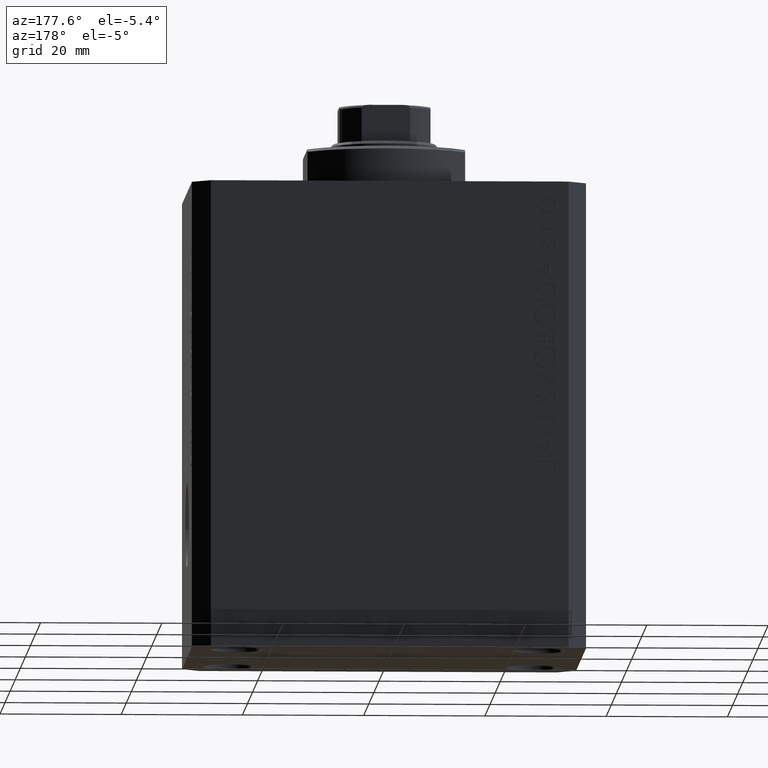
[diagram: clean part render]
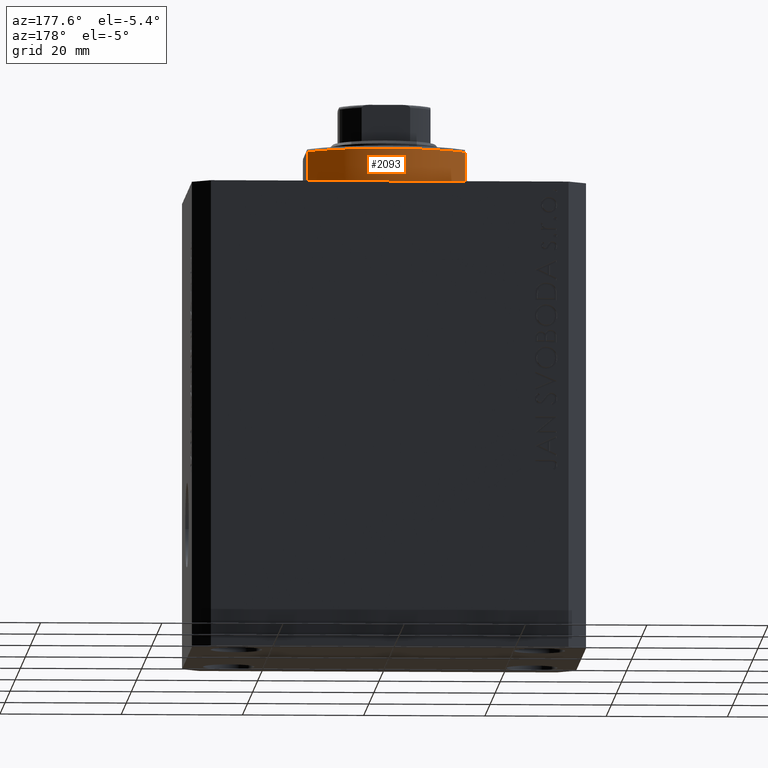
[diagram: same view with one face highlighted and labeled with its STEP entity id]
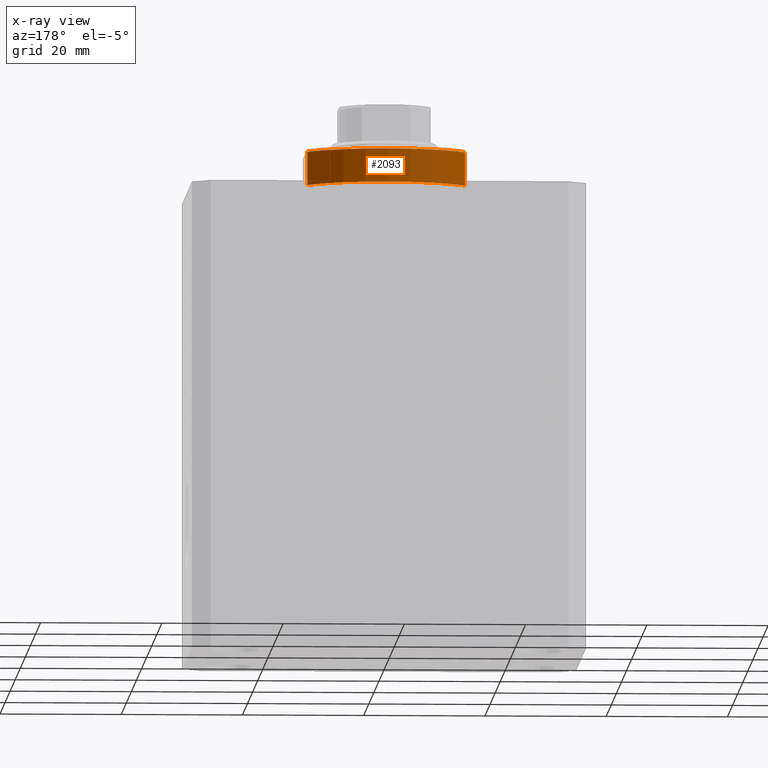
[diagram: x-ray of the same camera — body ghosted, the highlighted face saturated]
A machine part, auxiliary view. The second image highlights one B-rep face of the part: STEP entity #2093.
The next image is the same camera in x-ray: the body ghosted, the highlighted face saturated — about 0% of this face is hidden behind the body in this view.
In plain terms, the highlighted cylindrical surface (partial cylindrical patch) has radius 16 mm, axis along (0, 0, -1).
Its self-contained STEP definition (entity closure, byte-faithful):
#1007 = DIRECTION ( 'NONE',  ( -0.000000000000000000, -0.000000000000000000, 1.000000000000000000 ) ) ;
#1669 = CYLINDRICAL_SURFACE ( 'NONE', #5923, 16.00000000000000000 ) ;
#1932 = DIRECTION ( 'NONE',  ( 1.000000000000000000, -8.881784197001252323E-16, 0.000000000000000000 ) ) ;
#2093 = ADVANCED_FACE ( 'NONE', ( #34974 ), #1669, .T. ) ;
#2149 = EDGE_CURVE ( 'NONE', #26062, #39499, #5043, .T. ) ;
#3244 = ORIENTED_EDGE ( 'NONE', *, *, #19981, .T. ) ;
#4171 = DIRECTION ( 'NONE',  ( -0.000000000000000000, -0.000000000000000000, 1.000000000000000000 ) ) ;
#4704 = VECTOR ( 'NONE', #19715, 1000.000000000000000 ) ;
#4976 = EDGE_LOOP ( 'NONE', ( #12422, #3244, #17262, #19269 ) ) ;
#5043 = LINE ( 'NONE', #18099, #28203 ) ;
#5923 = AXIS2_PLACEMENT_3D ( 'NONE', #15145, #4171, #7964 ) ;
#5955 = EDGE_CURVE ( 'NONE', #39499, #9959, #8244, .T. ) ;
#7964 = DIRECTION ( 'NONE',  ( 1.000000000000000000, 0.000000000000000000, 0.000000000000000000 ) ) ;
#7980 = VERTEX_POINT ( 'NONE', #41646 ) ;
#8244 = CIRCLE ( 'NONE', #37704, 16.00000000000000000 ) ;
#8660 = CARTESIAN_POINT ( 'NONE',  ( 0.000000000000000000, 0.000000000000000000, -0.4999999999999995559 ) ) ;
#8699 = DIRECTION ( 'NONE',  ( -1.000000000000000000, 0.000000000000000000, 0.000000000000000000 ) ) ;
#9959 = VERTEX_POINT ( 'NONE', #28187 ) ;
#12422 = ORIENTED_EDGE ( 'NONE', *, *, #21788, .F. ) ;
#15145 = CARTESIAN_POINT ( 'NONE',  ( 0.000000000000000000, 0.000000000000000000, -6.500000000000000000 ) ) ;
#17221 = LINE ( 'NONE', #20612, #4704 ) ;
#17262 = ORIENTED_EDGE ( 'NONE', *, *, #2149, .T. ) ;
#18099 = CARTESIAN_POINT ( 'NONE',  ( -13.00000000000000000, 9.327379053088813876, -6.500000000000000000 ) ) ;
#19269 = ORIENTED_EDGE ( 'NONE', *, *, #5955, .T. ) ;
#19715 = DIRECTION ( 'NONE',  ( -0.000000000000000000, -0.000000000000000000, 1.000000000000000000 ) ) ;
#19981 = EDGE_CURVE ( 'NONE', #7980, #26062, #22621, .T. ) ;
#20612 = CARTESIAN_POINT ( 'NONE',  ( 13.00000000000000000, 9.327379053088813876, -6.500000000000000000 ) ) ;
#21788 = EDGE_CURVE ( 'NONE', #7980, #9959, #17221, .T. ) ;
#22621 = CIRCLE ( 'NONE', #25469, 16.00000000000000000 ) ;
#25469 = AXIS2_PLACEMENT_3D ( 'NONE', #35921, #39289, #8699 ) ;
#25545 = DIRECTION ( 'NONE',  ( -0.000000000000000000, -0.000000000000000000, -1.000000000000000000 ) ) ;
#26062 = VERTEX_POINT ( 'NONE', #29026 ) ;
#28187 = CARTESIAN_POINT ( 'NONE',  ( 13.00000000000000000, 9.327379053088815652, -0.4999999999999995559 ) ) ;
#28203 = VECTOR ( 'NONE', #1007, 1000.000000000000000 ) ;
#29026 = CARTESIAN_POINT ( 'NONE',  ( -13.00000000000000000, 9.327379053088916905, -6.000000000000014211 ) ) ;
#34974 = FACE_OUTER_BOUND ( 'NONE', #4976, .T. ) ;
#35921 = CARTESIAN_POINT ( 'NONE',  ( 0.000000000000000000, 0.000000000000000000, -6.000000000000023981 ) ) ;
#37704 = AXIS2_PLACEMENT_3D ( 'NONE', #8660, #25545, #1932 ) ;
#39289 = DIRECTION ( 'NONE',  ( 0.000000000000000000, 0.000000000000000000, 1.000000000000000000 ) ) ;
#39499 = VERTEX_POINT ( 'NONE', #43978 ) ;
#41646 = CARTESIAN_POINT ( 'NONE',  ( 13.00000000000000000, 9.327379053088916905, -6.000000000000014211 ) ) ;
#43978 = CARTESIAN_POINT ( 'NONE',  ( -13.00000000000000000, 9.327379053088815652, -0.4999999999999995559 ) ) ;